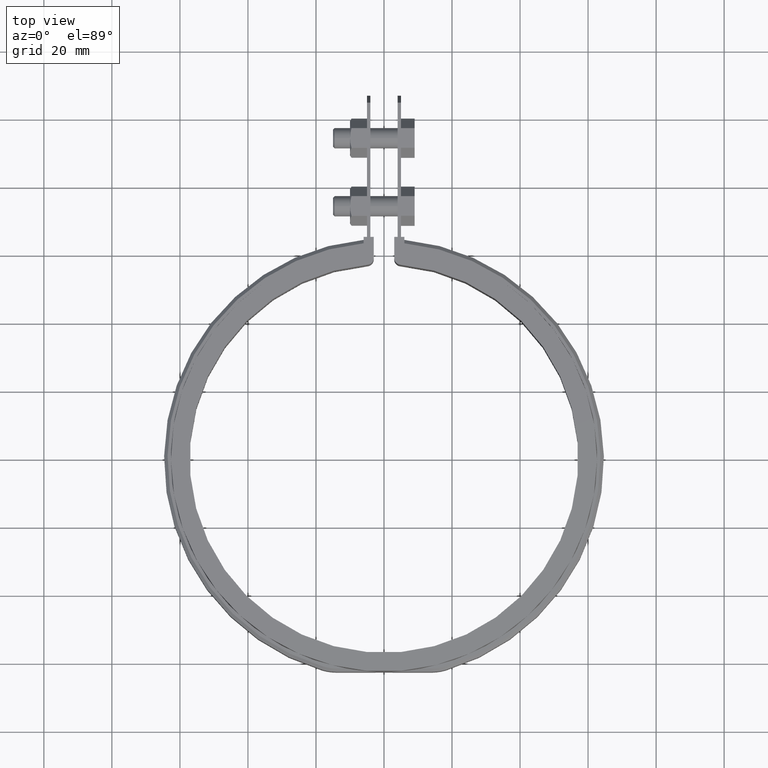
[diagram: clean part render]
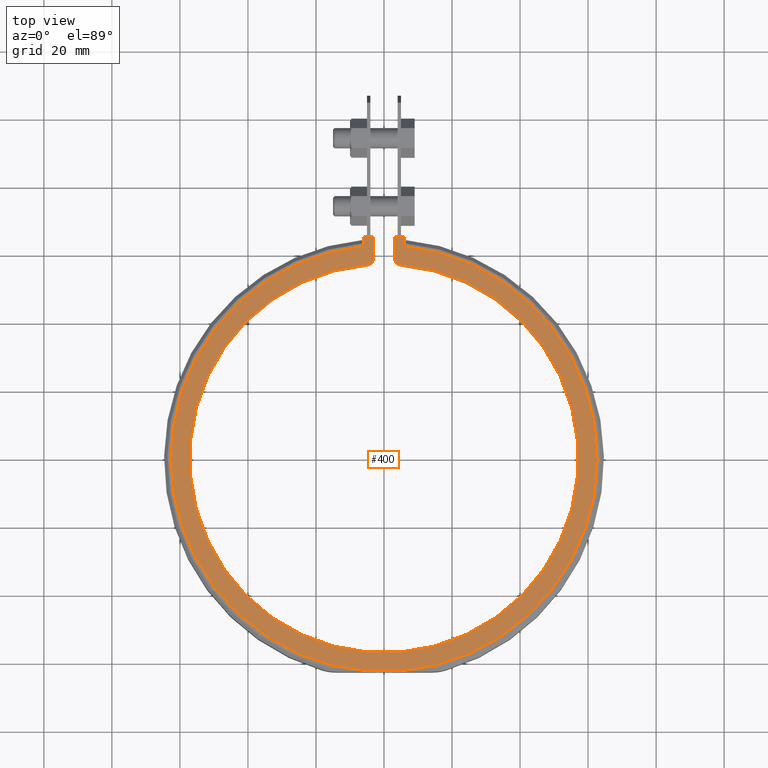
[diagram: same view with one face highlighted and labeled with its STEP entity id]
A machine part, top view. The second image highlights one B-rep face of the part: STEP entity #400.
In plain terms, the highlighted planar face has unit normal (0, 0, -1).
Its self-contained STEP definition (entity closure, byte-faithful):
#400 = ADVANCED_FACE( '', ( #692 ), #693, .F. );
#692 = FACE_OUTER_BOUND( '', #1544, .T. );
#693 = PLANE( '', #1545 );
#1544 = EDGE_LOOP( '', ( #3077, #3078, #3079, #3080, #3081, #3082, #3083, #3084, #3085, #3086 ) );
#1545 = AXIS2_PLACEMENT_3D( '', #3087, #3088, #3089 );
#3077 = ORIENTED_EDGE( '', *, *, #4119, .T. );
#3078 = ORIENTED_EDGE( '', *, *, #4107, .T. );
#3079 = ORIENTED_EDGE( '', *, *, #4088, .T. );
#3080 = ORIENTED_EDGE( '', *, *, #4061, .T. );
#3081 = ORIENTED_EDGE( '', *, *, #4096, .T. );
#3082 = ORIENTED_EDGE( '', *, *, #4111, .T. );
#3083 = ORIENTED_EDGE( '', *, *, #4120, .T. );
#3084 = ORIENTED_EDGE( '', *, *, #4013, .T. );
#3085 = ORIENTED_EDGE( '', *, *, #4121, .T. );
#3086 = ORIENTED_EDGE( '', *, *, #4122, .T. );
#3087 = CARTESIAN_POINT( '', ( 5.23468562216772, 60.8144995942392, 14.0000000000000 ) );
#3088 = DIRECTION( '', ( 0.000000000000000, 0.000000000000000, -1.00000000000000 ) );
#3089 = DIRECTION( '', ( 0.112630732099760, 0.993636914665851, 0.000000000000000 ) );
#4013 = EDGE_CURVE( '', #4626, #4627, #4628, .T. );
#4061 = EDGE_CURVE( '', #4706, #4704, #4707, .T. );
#4088 = EDGE_CURVE( '', #4753, #4706, #4754, .T. );
#4096 = EDGE_CURVE( '', #4704, #4766, #4768, .T. );
#4107 = EDGE_CURVE( '', #4783, #4753, #4784, .T. );
#4111 = EDGE_CURVE( '', #4766, #4789, #4791, .T. );
#4119 = EDGE_CURVE( '', #4802, #4783, #4803, .T. );
#4120 = EDGE_CURVE( '', #4789, #4626, #4804, .T. );
#4121 = EDGE_CURVE( '', #4627, #4805, #4806, .T. );
#4122 = EDGE_CURVE( '', #4805, #4802, #4807, .T. );
#4626 = VERTEX_POINT( '', #6733 );
#4627 = VERTEX_POINT( '', #6734 );
#4628 = CIRCLE( '', #6735, 2.00000000000000 );
#4704 = VERTEX_POINT( '', #7113 );
#4706 = VERTEX_POINT( '', #7116 );
#4707 = CIRCLE( '', #7117, 62.6500000000000 );
#4753 = VERTEX_POINT( '', #7382 );
#4754 = LINE( '', #7383, #7384 );
#4766 = VERTEX_POINT( '', #7404 );
#4768 = LINE( '', #7407, #7408 );
#4783 = VERTEX_POINT( '', #7444 );
#4784 = LINE( '', #7445, #7446 );
#4789 = VERTEX_POINT( '', #7453 );
#4791 = LINE( '', #7456, #7457 );
#4802 = VERTEX_POINT( '', #7473 );
#4803 = LINE( '', #7474, #7475 );
#4804 = LINE( '', #7476, #7477 );
#4805 = VERTEX_POINT( '', #7478 );
#4806 = CIRCLE( '', #7479, 57.1500000000000 );
#4807 = CIRCLE( '', #7480, 2.00000000000000 );
#6733 = CARTESIAN_POINT( '', ( 3.00000000000000, 58.9382940031352, 14.0000000000000 ) );
#6734 = CARTESIAN_POINT( '', ( 4.83093829247670, 56.9454522785998, 14.0000000000000 ) );
#6735 = AXIS2_PLACEMENT_3D( '', #8243, #8244, #8245 );
#7113 = CARTESIAN_POINT( '', ( 5.99999999999996, 62.3620277091757, 14.0000000000000 ) );
#7116 = CARTESIAN_POINT( '', ( -6.00000000000000, 62.3620277091758, 14.0000000000000 ) );
#7117 = AXIS2_PLACEMENT_3D( '', #8303, #8304, #8305 );
#7382 = CARTESIAN_POINT( '', ( -6.00000000000002, 65.1500000000000, 14.0000000000000 ) );
#7383 = CARTESIAN_POINT( '', ( -6.00000000000000, 65.1500000000000, 14.0000000000000 ) );
#7384 = VECTOR( '', #8335, 1000.00000000000 );
#7404 = CARTESIAN_POINT( '', ( 6.00000000000001, 65.1500000000000, 14.0000000000000 ) );
#7407 = CARTESIAN_POINT( '', ( 6.00000000000001, 62.3620277091758, 14.0000000000000 ) );
#7408 = VECTOR( '', #8342, 1000.00000000000 );
#7444 = CARTESIAN_POINT( '', ( -2.99999999999995, 65.1500000000000, 14.0000000000000 ) );
#7445 = CARTESIAN_POINT( '', ( -5.00000000000001, 65.1500000000000, 14.0000000000000 ) );
#7446 = VECTOR( '', #8350, 1000.00000000000 );
#7453 = CARTESIAN_POINT( '', ( 3.00000000000001, 65.1500000000000, 14.0000000000000 ) );
#7456 = CARTESIAN_POINT( '', ( 6.00000000000001, 65.1500000000000, 14.0000000000000 ) );
#7457 = VECTOR( '', #8354, 1000.00000000000 );
#7473 = CARTESIAN_POINT( '', ( -2.99999999999995, 58.9382940031352, 14.0000000000000 ) );
#7474 = CARTESIAN_POINT( '', ( -2.99999999999995, 58.9382940031352, 14.0000000000000 ) );
#7475 = VECTOR( '', #8366, 1000.00000000000 );
#7476 = CARTESIAN_POINT( '', ( 3.00000000000000, 65.1500000000000, 14.0000000000000 ) );
#7477 = VECTOR( '', #8367, 1000.00000000000 );
#7478 = CARTESIAN_POINT( '', ( -4.83093829247667, 56.9454522785998, 14.0000000000000 ) );
#7479 = AXIS2_PLACEMENT_3D( '', #8368, #8369, #8370 );
#7480 = AXIS2_PLACEMENT_3D( '', #8371, #8372, #8373 );
#8243 = CARTESIAN_POINT( '', ( 5.00000000000000, 58.9382940031352, 14.0000000000000 ) );
#8244 = DIRECTION( '', ( 0.000000000000000, 0.000000000000000, 1.00000000000000 ) );
#8245 = DIRECTION( '', ( -1.00000000000000, -1.22124532708767E-015, 0.000000000000000 ) );
#8303 = CARTESIAN_POINT( '', ( 6.93889390390723E-015, 5.55111512312578E-014, 14.0000000000000 ) );
#8304 = DIRECTION( '', ( 0.000000000000000, 0.000000000000000, 1.00000000000000 ) );
#8305 = DIRECTION( '', ( 1.00000000000000, -1.38777878078145E-017, 0.000000000000000 ) );
#8335 = DIRECTION( '', ( 1.38777878078145E-017, -1.00000000000000, 0.000000000000000 ) );
#8342 = DIRECTION( '', ( -1.38777878078145E-017, 1.00000000000000, 0.000000000000000 ) );
#8350 = DIRECTION( '', ( -1.00000000000000, 9.71445146547012E-017, 0.000000000000000 ) );
#8354 = DIRECTION( '', ( -1.00000000000000, 9.71445146547012E-017, 0.000000000000000 ) );
#8366 = DIRECTION( '', ( 4.16333634234434E-017, 1.00000000000000, 0.000000000000000 ) );
#8367 = DIRECTION( '', ( -4.16333634234434E-017, -1.00000000000000, 0.000000000000000 ) );
#8368 = CARTESIAN_POINT( '', ( 0.000000000000000, 0.000000000000000, 14.0000000000000 ) );
#8369 = DIRECTION( '', ( 0.000000000000000, 0.000000000000000, -1.00000000000000 ) );
#8370 = DIRECTION( '', ( 1.00000000000000, -2.77555756156289E-017, 0.000000000000000 ) );
#8371 = CARTESIAN_POINT( '', ( -4.99999999999995, 58.9382940031352, 14.0000000000000 ) );
#8372 = DIRECTION( '', ( 0.000000000000000, 0.000000000000000, 1.00000000000000 ) );
#8373 = DIRECTION( '', ( 1.00000000000000, -2.26207941267376E-015, 0.000000000000000 ) );